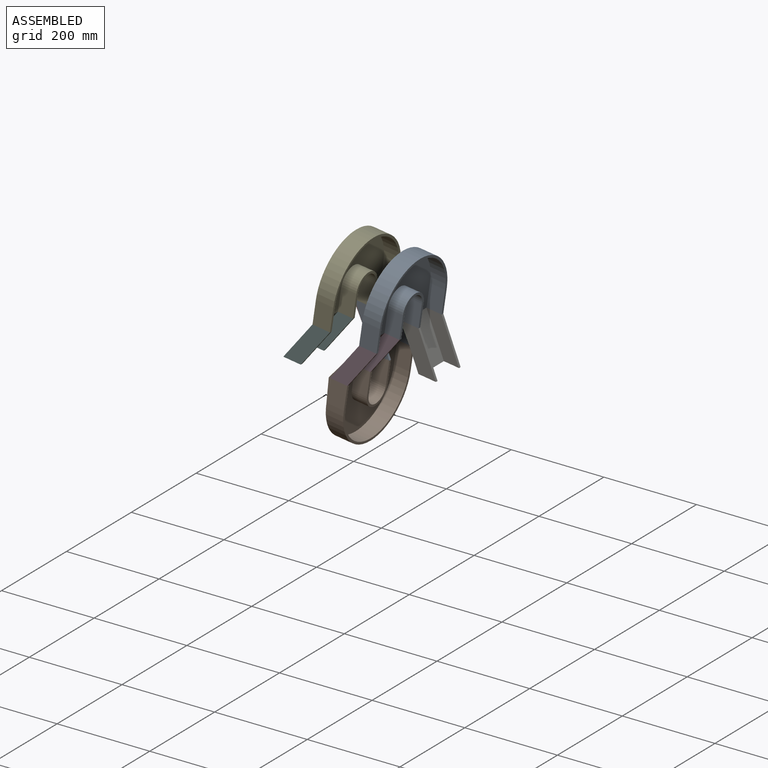
[diagram: assembled view]
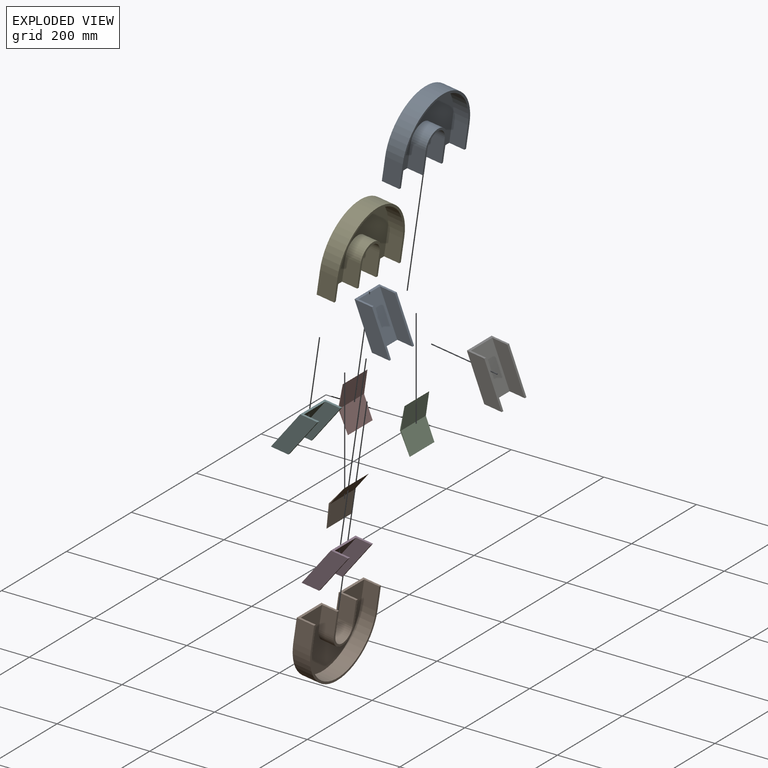
[diagram: exploded view]
GUIDED TOUR — MATED ASSEMBLY (Onshape document 0f732b4c9be885f1928bcccb, AutoMate assembly 0f732b4c9be885f1928bcccb_c0cea8af5c024fc4c8815279_246d32e3d56a053749b8df74_default)

This assembly has 10 components, labeled P0..P9 below (a component is one placed occurrence of a part; the same part can appear more than once), held together by 9 mates. A mate is a constraint between two components; its type names the relative motion it leaves free:
  FASTENED — locks the two components together rigidly (no relative motion).
Axis/direction vectors are unit vectors and 'through' points are millimeter coordinates, both in the assembly's world frame.

MATES
  1. FASTENED "Fastened 6": P4 <-> P8, direction (-0.145, 0.000, -0.989) through (-58.85, -115.97, -117.68) mm
  2. FASTENED "Fastened 2": P0 <-> P2, direction (-0.145, 0.000, -0.989) through (34.10, -154.07, -105.66) mm
  3. FASTENED "Fastened 1": P0 <-> P6, direction (-0.989, 0.000, 0.145) through (49.26, -154.07, -133.56) mm
  4. FASTENED "Fastened 5": P8 <-> P9, direction (-0.145, 0.000, -0.989) through (-21.37, -115.97, -212.12) mm
  5. FASTENED "Fastened 3": P3 <-> P0, direction (0.145, 0.000, 0.989) through (35.43, -245.51, -131.53) mm
  6. FASTENED "Fastened 7": P5 <-> P4, direction (0.145, 0.000, 0.989) through (-58.85, -245.51, -117.68) mm
  7. FASTENED "Fastened 8": P7 <-> P4, direction (-0.145, 0.000, -0.989) through (-66.43, -154.07, -90.90) mm
  8. FASTENED "Fastened 9": P1 <-> P9, direction (0.145, 0.000, 0.989) through (-36.32, -283.61, -235.60) mm
  9. FASTENED "Fastened 4": P9 <-> P3, direction (0.145, 0.000, 0.989) through (-27.61, -245.51, -211.20) mm

ASSEMBLY ORDER
  1. P8 — the base component [order verified]
  2. P7 [order verified]
  3. P5 [order verified]
  4. P4 [order verified]
  5. P1 [order verified]
  6. P3 [order verified]
  7. P2 [order verified]
  8. P6 [order verified]
  9. P0 [order verified]
  10. P9 [order verified]
Order-tag legend:
  [order verified] — this step's position reverses a verified removal order: the component was checked to insert without passing through the ones already placed.

Of the 10 components, 7 carry the full construction recipe — the FeatureScript program that regenerates the part's solid from scratch; the rest are supplied as boundary geometry only.
Each toured component is shown spotlighted twice — in the assembled view, then in the exploded view, where a leader line traces a displaced component back to its assembled socket (saturated green if recipe-attached, orange if geometry-only; every other component desaturated gray) — followed by its recipe or geometry summary and the mates that hold it.
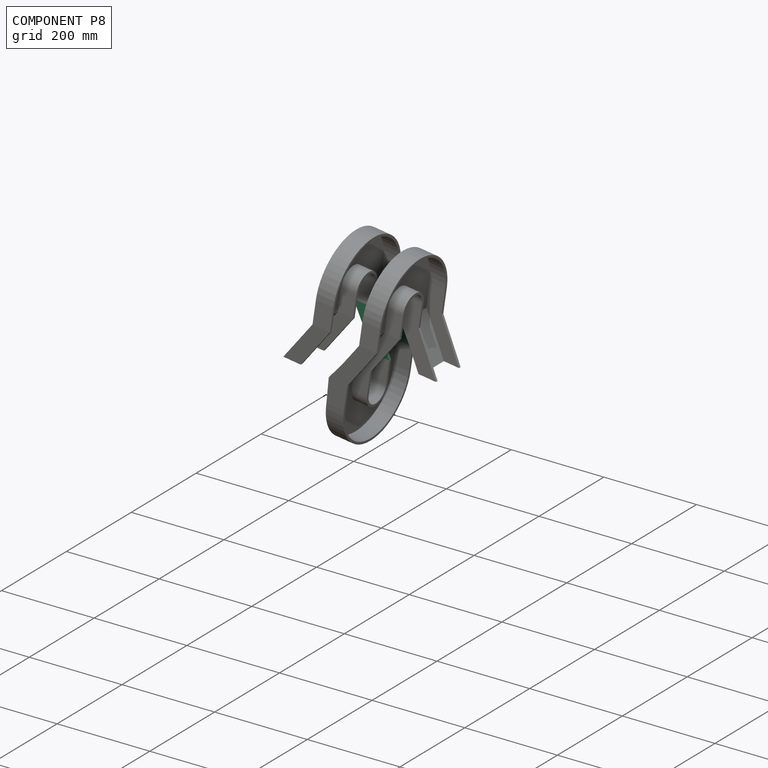
[diagram: component P8 — assembled]
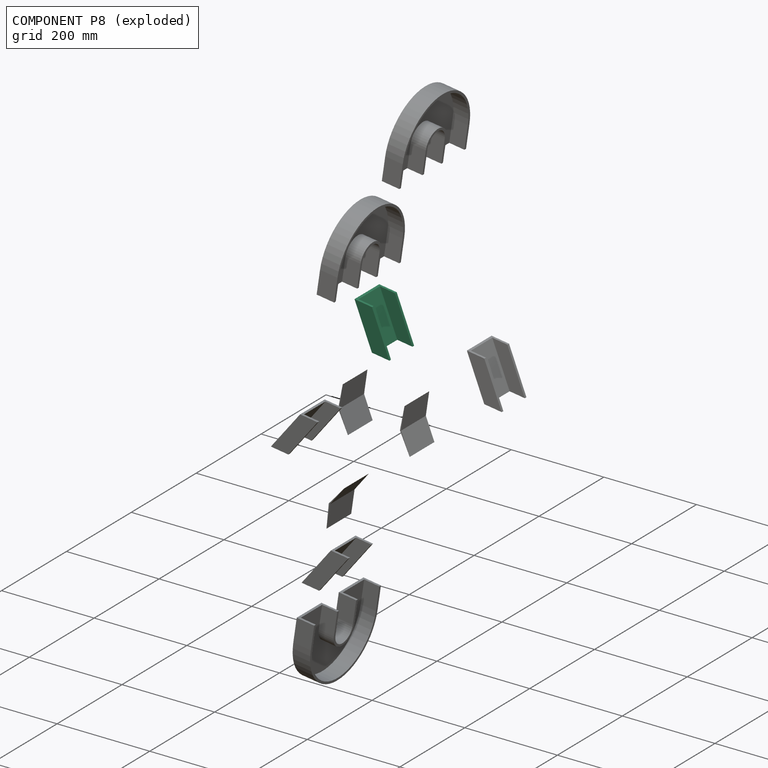
[diagram: component P8 — exploded]
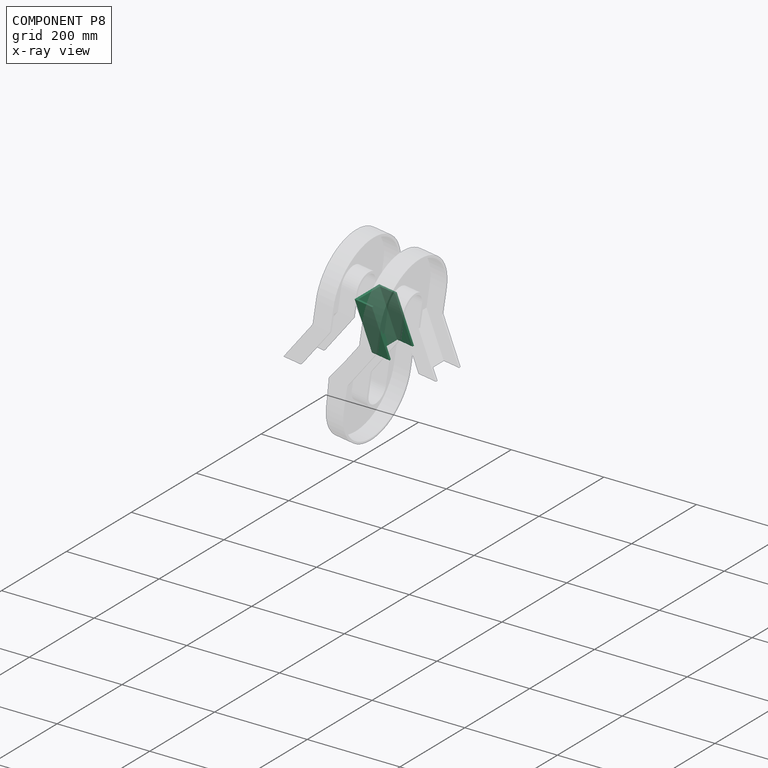
[diagram: component P8 — x-ray view]
COMPONENT P8 — same part as P3 (CADFS 00770395); its construction recipe is shown at P3.
Held by: FASTENED mate "Fastened 6" to P4; FASTENED mate "Fastened 5" to P9.
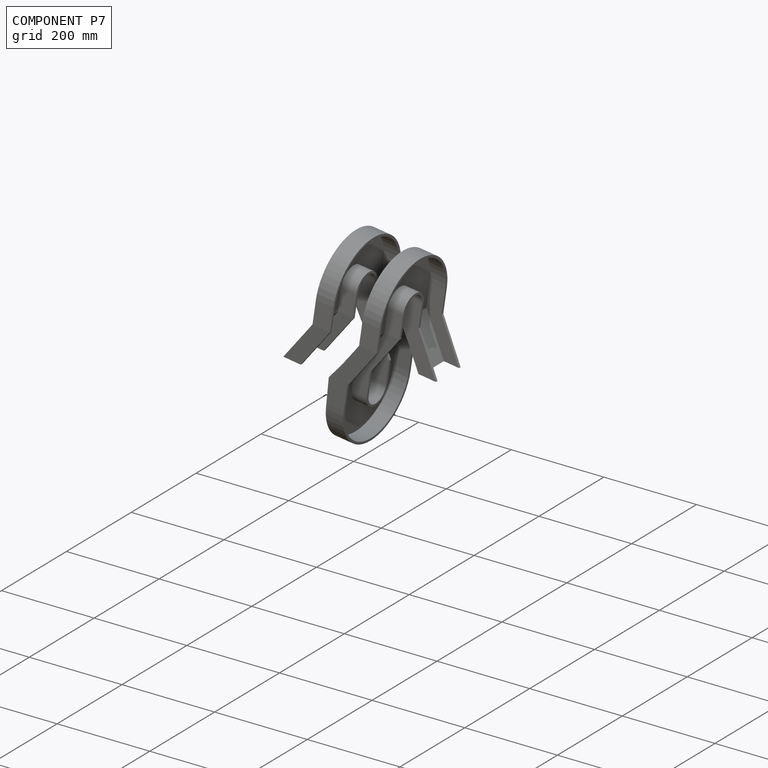
[diagram: component P7 — assembled]
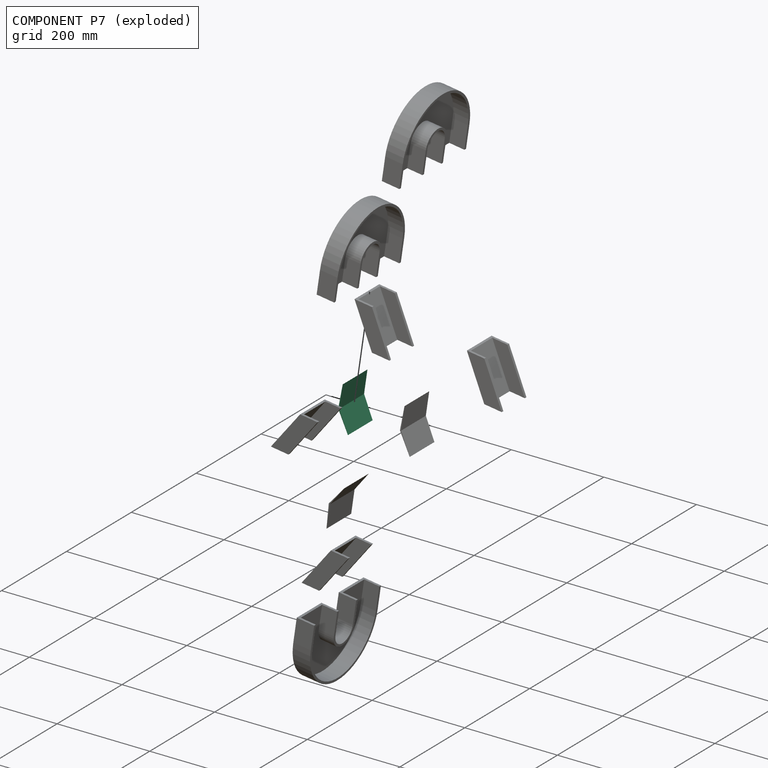
[diagram: component P7 — exploded]
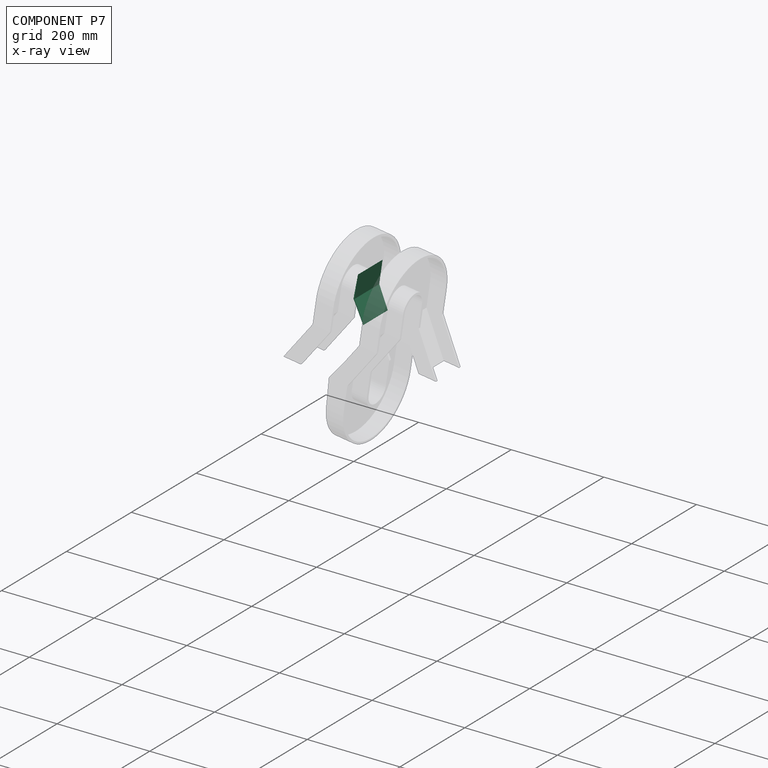
[diagram: component P7 — x-ray view]
COMPONENT P7 — same part as P1 (CADFS 00770396); its construction recipe is shown at P1.
Held by: FASTENED mate "Fastened 8" to P4.
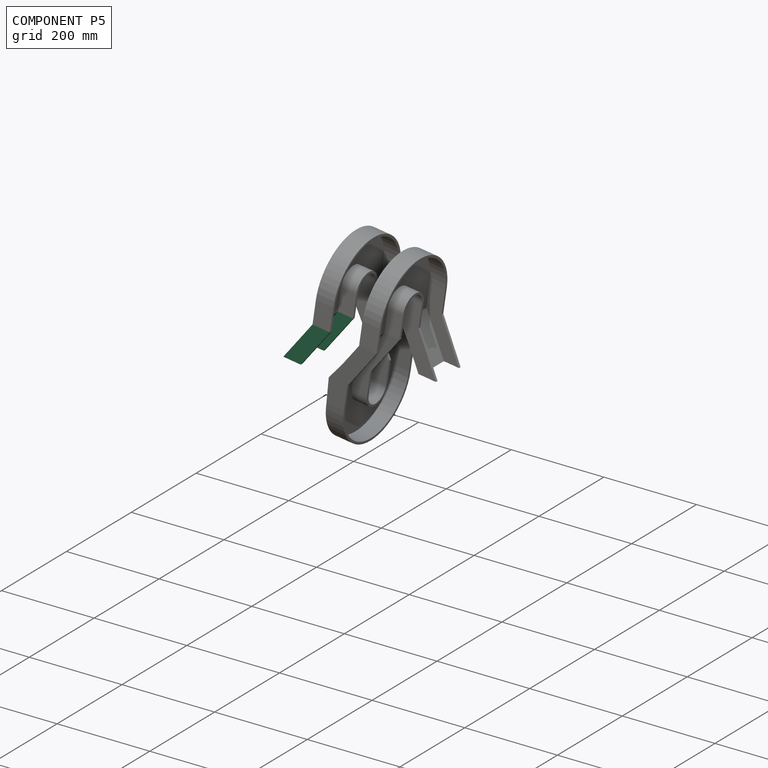
[diagram: component P5 — assembled]
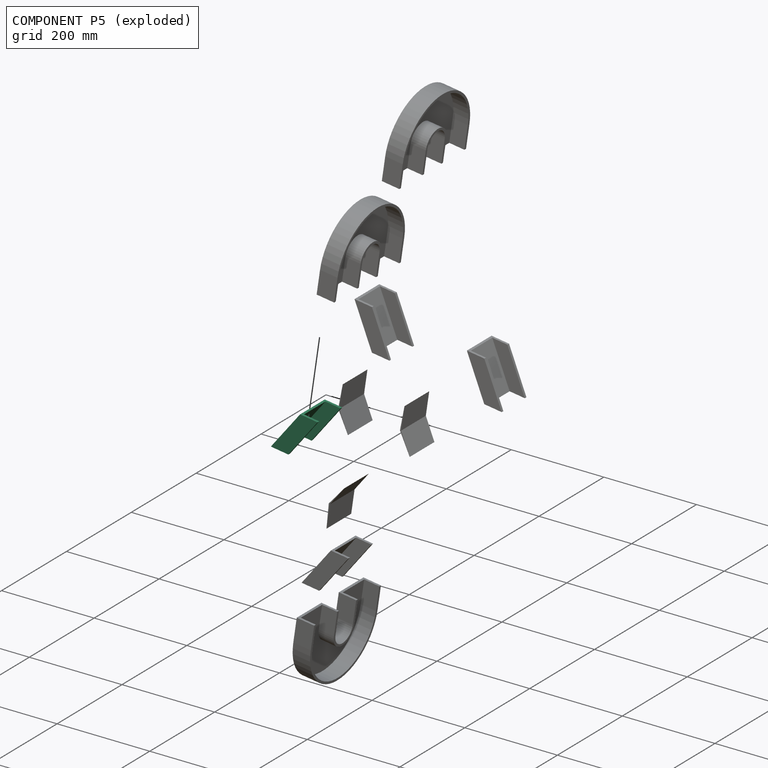
[diagram: component P5 — exploded]
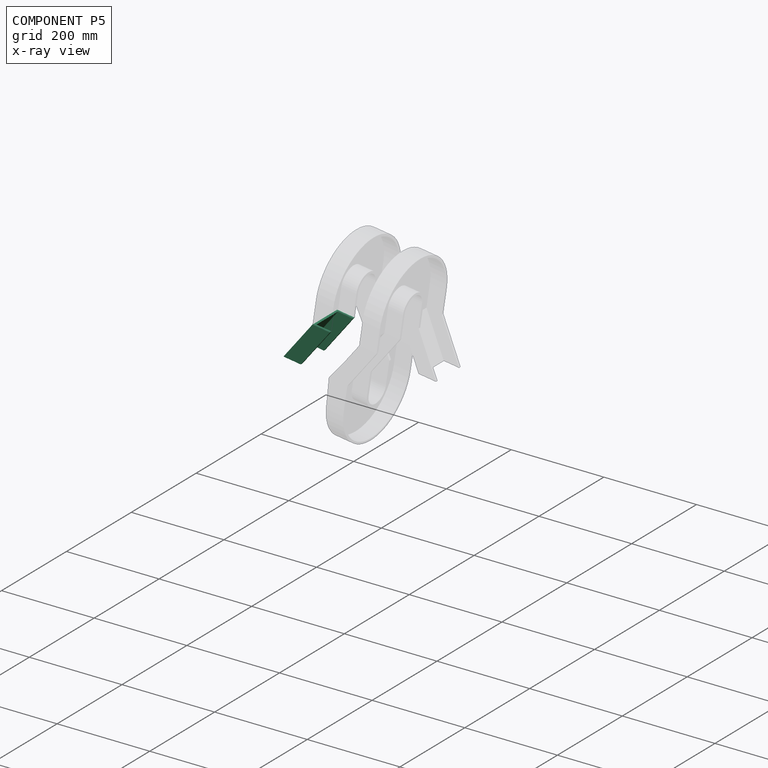
[diagram: component P5 — x-ray view]
COMPONENT P5 — same part as P3 (CADFS 00770395); its construction recipe is shown at P3.
Held by: FASTENED mate "Fastened 7" to P4.
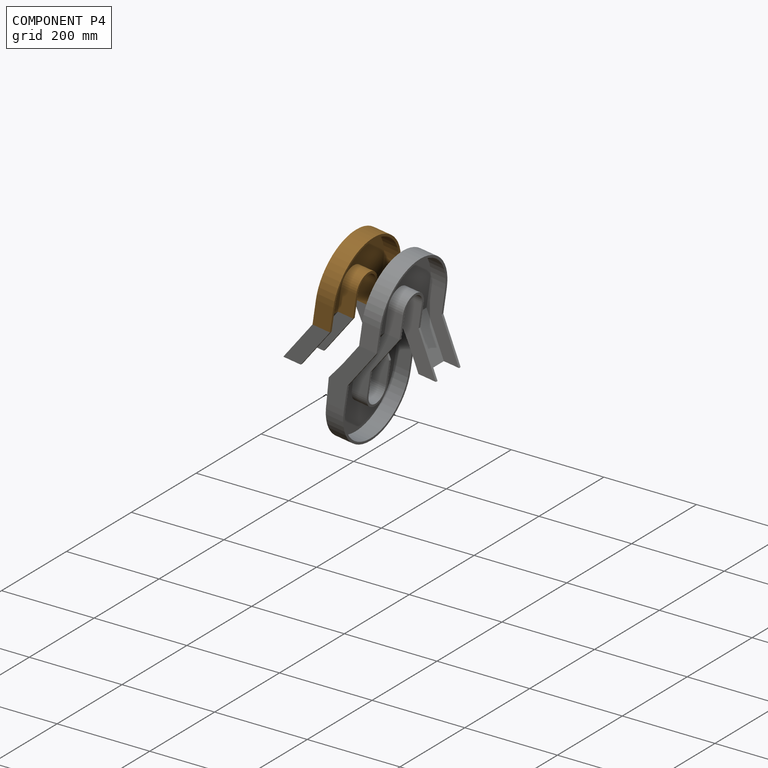
[diagram: component P4 — assembled]
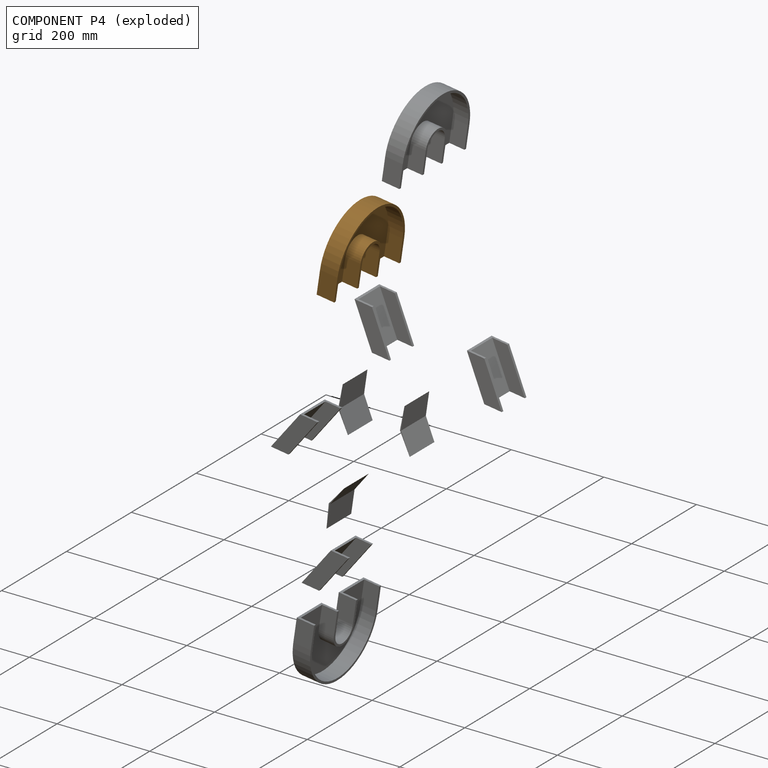
[diagram: component P4 — exploded]
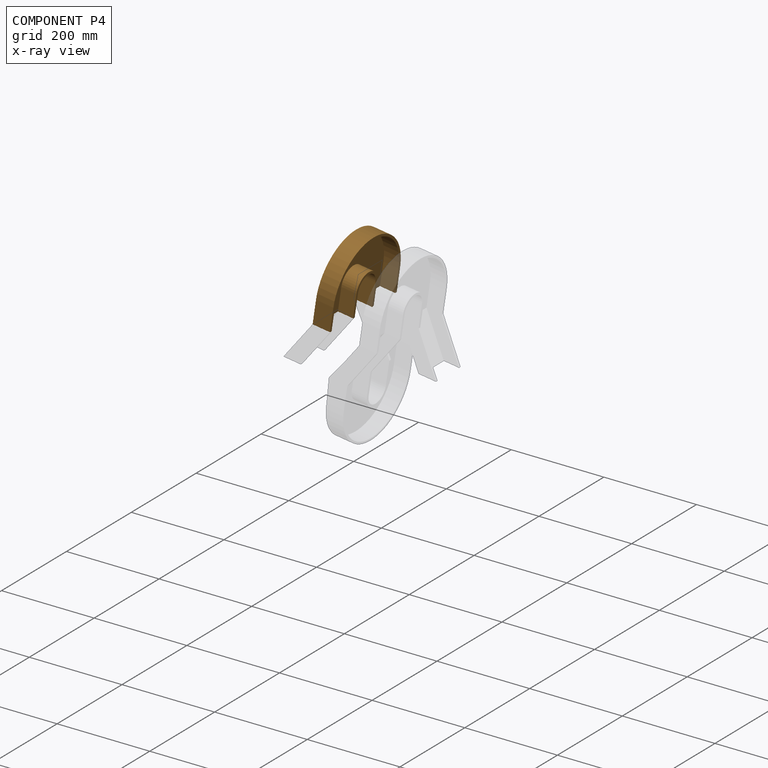
[diagram: component P4 — x-ray view]
COMPONENT P4 — geometry summary (no construction recipe available for this part):
  bounding box: 205.7 x 153.7 x 38.1 mm
  B-rep topology: 1 solid, 18 faces, 96 edges
  volume: 220445 mm^3 (18% of its bounding box)
  symmetry: mirror-symmetric across its y mid-plane
Held by: FASTENED mate "Fastened 6" to P8; FASTENED mate "Fastened 7" to P5; FASTENED mate "Fastened 8" to P7.
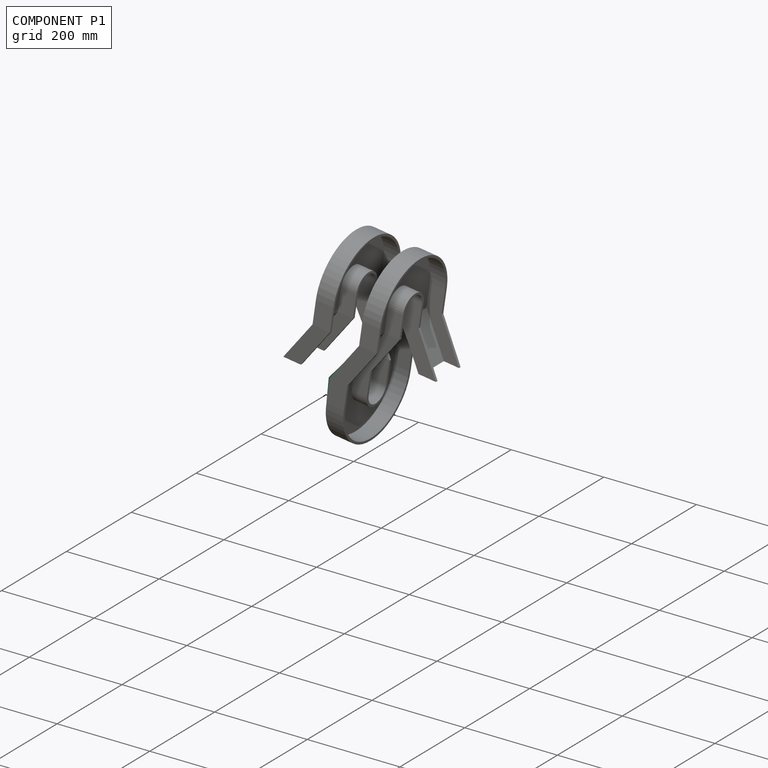
[diagram: component P1 — assembled]
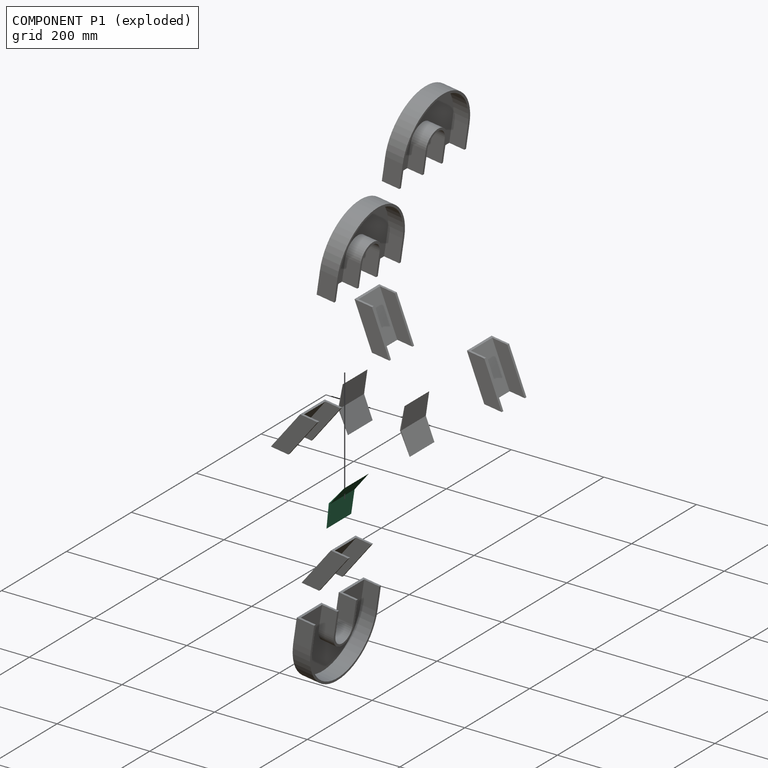
[diagram: component P1 — exploded]
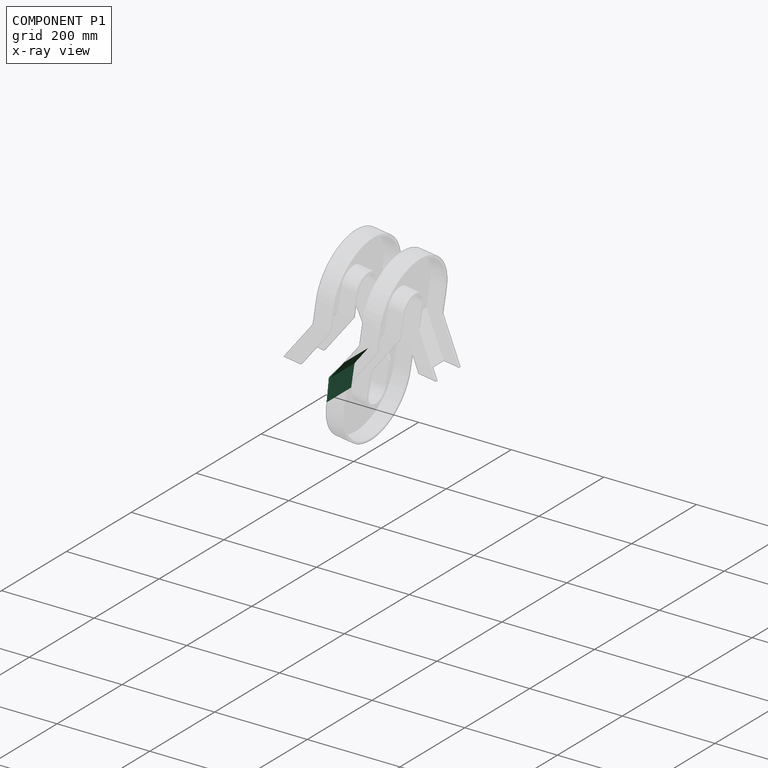
[diagram: component P1 — x-ray view]
COMPONENT P1 — recipe-attached (CADFS 00770396, mesh-verified: the recipe's output STEP matches this component's geometry to below the mesh-comparison resolution (tessellation chordal tolerance ~0.185 mm)).
Held by: FASTENED mate "Fastened 9" to P9.
Construction recipe (FeatureScript — the CAD program that rebuilds this solid; sketch coordinates are in the units given by the * unit suffixes, e.g. mm):

FeatureScript 1511;
import(path : "onshape/std/geometry.fs", version : "1511.0");
import(path : "onshape/std/common.fs", version : "1511.0");
const mm = millimeter;
const VERTEX = EntityType.VERTEX;
const EDGE = EntityType.EDGE;
const FACE = EntityType.FACE;
const BODY = EntityType.BODY;
function v(x, y){return vector(x, y);}
function OD(order){return orderDisambiguation(order);}
function OSD(set){return originalSetDisambiguation(set);}
function TD(topology){return topologyDisambiguation(topology);}
function TDD(query){return trueDependencyDisambiguation(query);}
function sQuery(a, b, c) {return sketchEntityQuery(a, b, c);}

annotation { "Feature Type Name" : "Feature", "Feature Type Description" : "" }
export const myFeature = defineFeature(function(context is Context, id is Id, definition is map)
    precondition{}
    {
        {
            var Q0;
            Q0=qCreatedBy(makeId("Top.planeOp"),FACE);
            var sketch = newSketch(context, id + "F0", { "sketchPlane" : qUnion([Q0])});
            skLineSegment(sketch, "E0", {"start": v(-29.55, -15.76) * mm, "end": v(1.55, 23.54) * mm});
            skLineSegment(sketch, "E1", {"start": v(1.55, 23.54) * mm, "end": v(48.06, 42) * mm});
            skLineSegment(sketch, "E2", {"start": v(-29.55, -15.76) * mm, "end": v(0, 25.56) * mm});
            skLineSegment(sketch, "E3", {"start": v(0, 25.56) * mm, "end": v(48.06, 42) * mm});
            skSolve(sketch);
        }
        {
            var Q0;
            Q0 = qSketchRegion(id + "F0", true);
            extrude(context, id + "F1", {"entities" : qUnion([Q0]), "depth" : 76.2 * mm, "offsetDistance" : 25.4 * mm});
        }
    });
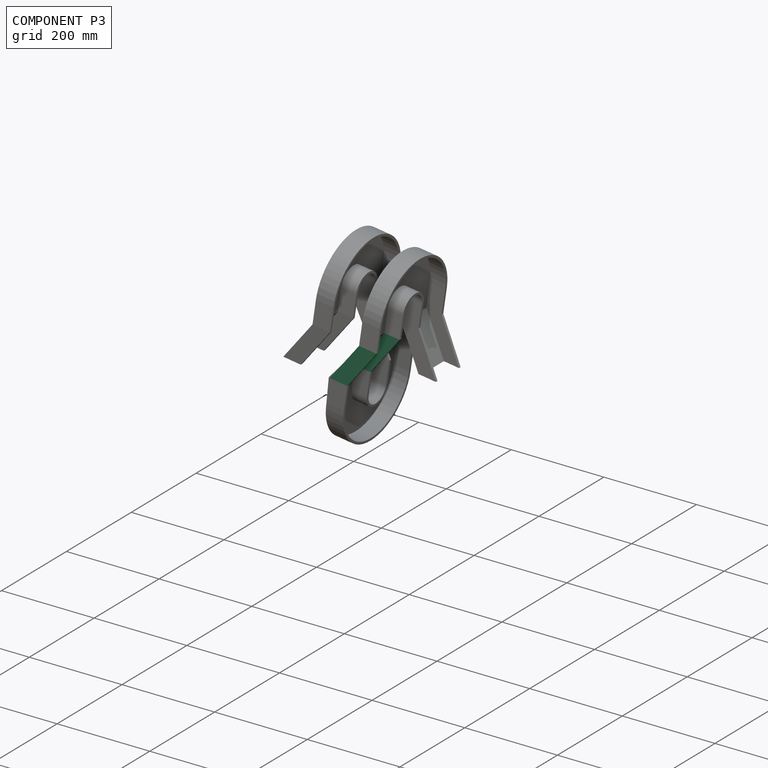
[diagram: component P3 — assembled]
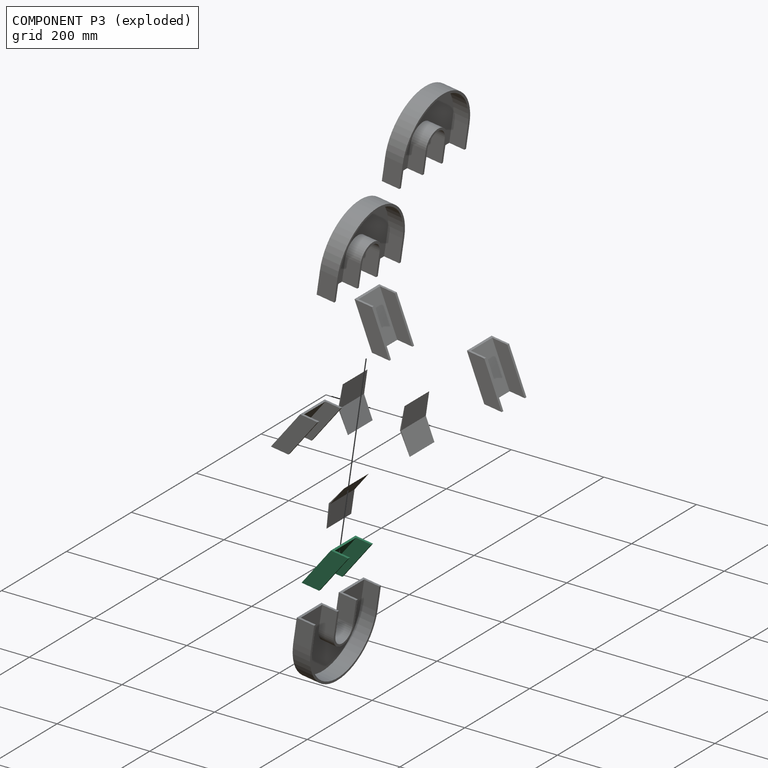
[diagram: component P3 — exploded]
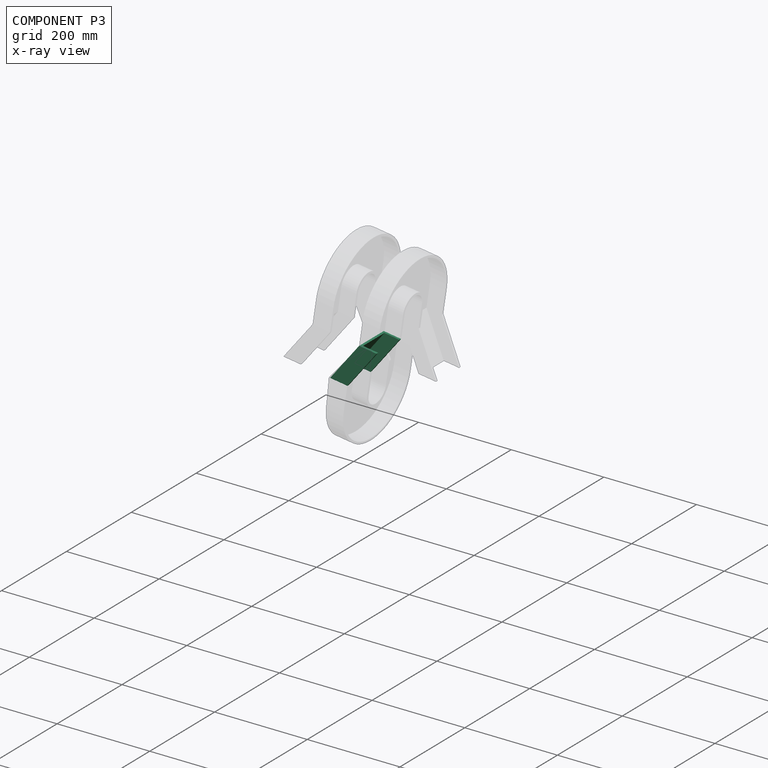
[diagram: component P3 — x-ray view]
COMPONENT P3 — recipe-attached (CADFS 00770395, mesh-verified: the recipe's output STEP matches this component's geometry to below the mesh-comparison resolution (tessellation chordal tolerance ~0.22 mm)).
Held by: FASTENED mate "Fastened 3" to P0; FASTENED mate "Fastened 4" to P9.
Construction recipe (FeatureScript — the CAD program that rebuilds this solid; sketch coordinates are in the units given by the * unit suffixes, e.g. mm):

FeatureScript 1511;
import(path : "onshape/std/geometry.fs", version : "1511.0");
import(path : "onshape/std/common.fs", version : "1511.0");
const mm = millimeter;
const VERTEX = EntityType.VERTEX;
const EDGE = EntityType.EDGE;
const FACE = EntityType.FACE;
const BODY = EntityType.BODY;
function v(x, y){return vector(x, y);}
function OD(order){return orderDisambiguation(order);}
function OSD(set){return originalSetDisambiguation(set);}
function TD(topology){return topologyDisambiguation(topology);}
function TDD(query){return trueDependencyDisambiguation(query);}
function sQuery(a, b, c) {return sketchEntityQuery(a, b, c);}

annotation { "Feature Type Name" : "Feature", "Feature Type Description" : "" }
export const myFeature = defineFeature(function(context is Context, id is Id, definition is map)
    precondition{}
    {
        {
            var Q0;
            Q0=qCreatedBy(makeId("Top.planeOp"),FACE);
            var sketch = newSketch(context, id + "F0", { "sketchPlane" : qUnion([Q0])});
            skLineSegment(sketch, "E0", {"start": v(-55.08, -0.83) * mm, "end": v(46.52, -0.83) * mm});
            skLineSegment(sketch, "E1", {"start": v(46.52, -0.83) * mm, "end": v(27.46, -33.85) * mm});
            skLineSegment(sketch, "E2", {"start": v(27.46, -33.85) * mm, "end": v(-74.14, -33.85) * mm});
            skLineSegment(sketch, "E3", {"start": v(-74.14, -33.85) * mm, "end": v(-55.08, -0.83) * mm});
            skSolve(sketch);
        }
        {
            var Q0;
            Q0=makeQuery(id+"F0.imprint","IMPRINT",FACE,{"disambiguationData":[TD([[makeQuery(id+"F0.imprint","IMPRINT",EDGE,{"derivedFrom":sQuery(id+"F0.wireOp",EDGE,"E0")}),-1.0]])]});
            extrude(context, id + "F1", {"entities" : qUnion([Q0]), "depth" : 76.2 * mm, "offsetDistance" : 25.4 * mm});
        }
        {
            var Q0;
            Q0=makeQuery(id+"F1.opExtrude","SWEPT_FACE",FACE,{"disambiguationData":[OSD([sQuery(id+"F0.wireOp",EDGE,"E1")])]});
            var sketch = newSketch(context, id + "F2", { "sketchPlane" : qUnion([Q0])});
            skLineSegment(sketch, "E4", {"start": v(22.54, 71.12) * mm, "end": v(-10.51, 71.12) * mm});
            skLineSegment(sketch, "E5", {"start": v(-10.51, 71.12) * mm, "end": v(-10.51, 5.08) * mm});
            skLineSegment(sketch, "E6", {"start": v(-10.51, 5.08) * mm, "end": v(22.54, 5.08) * mm});
            skSolve(sketch);
        }
        {
            var Q0;
            Q0=makeQuery(id+"F1.opExtrude","SWEPT_FACE",FACE,{"disambiguationData":[OSD([sQuery(id+"F0.wireOp",EDGE,"E0")])]});
            var sketch = newSketch(context, id + "F3", { "sketchPlane" : qUnion([Q0])});
            skLineSegment(sketch, "E7", {"start": v(-46.52, 38.1) * mm, "end": v(55.08, 38.1) * mm});
            skSolve(sketch);
        }
        {
            var Q0;
            {var subQ0=sQuery(id+"F2.wireOp",EDGE,"E4");Q0=makeQuery(id+"F2.imprint","IMPRINT",FACE,{"disambiguationData":[TD([[makeQuery(id+"F2.imprint","IMPRINT",EDGE,{"derivedFrom":subQ0}),1.0]])]});}
            var Q1;
            Q1=sQuery(id+"F3.wireOp",EDGE,"E7");
            sweep(context, id + "F4", {"operationType" : NewBodyOperationType.REMOVE, "profiles" : qUnion([Q0]), "path" : qUnion([Q1])});
        }
    });
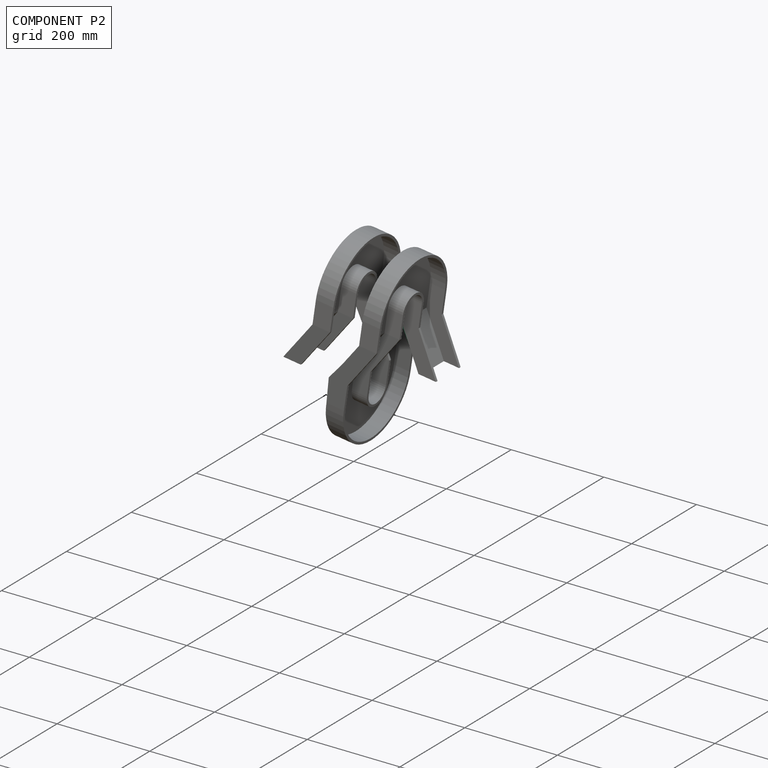
[diagram: component P2 — assembled]
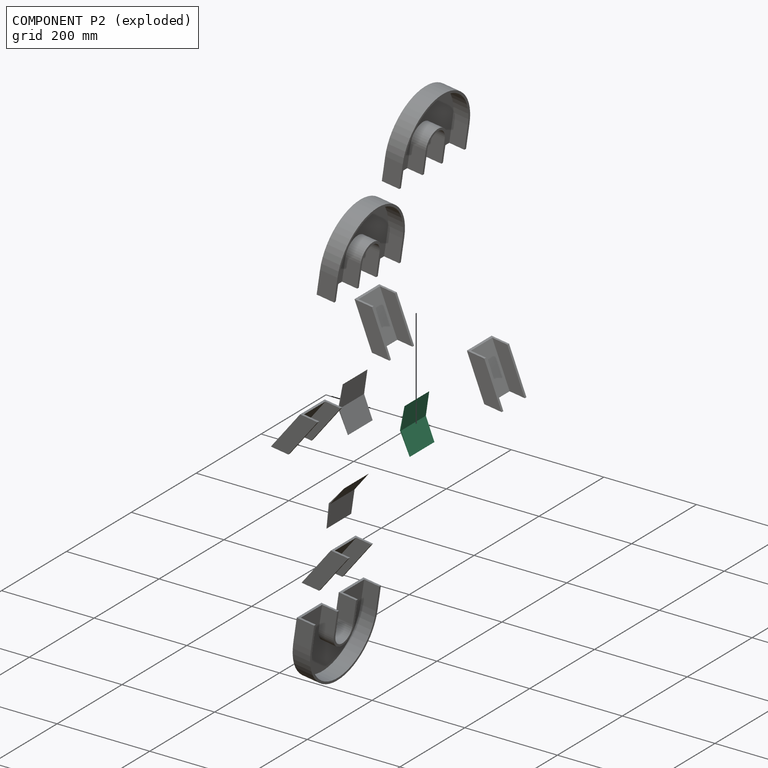
[diagram: component P2 — exploded]
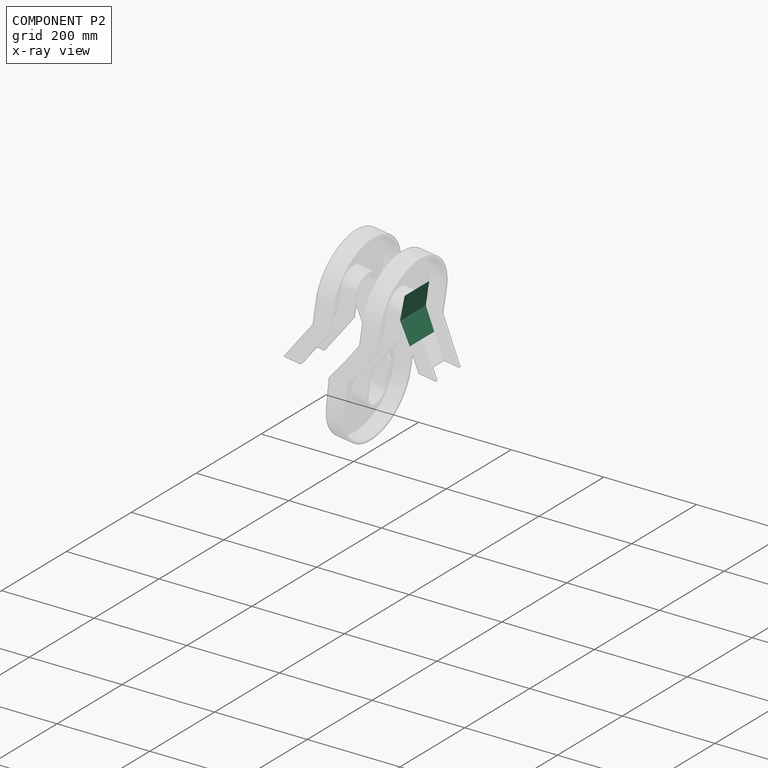
[diagram: component P2 — x-ray view]
COMPONENT P2 — same part as P1 (CADFS 00770396); its construction recipe is shown at P1.
Held by: FASTENED mate "Fastened 2" to P0.
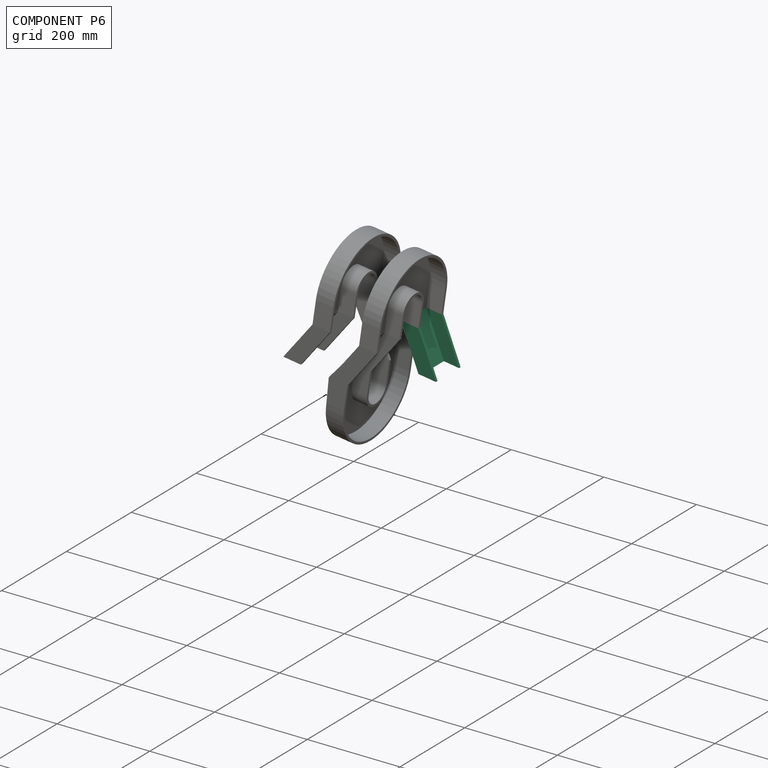
[diagram: component P6 — assembled]
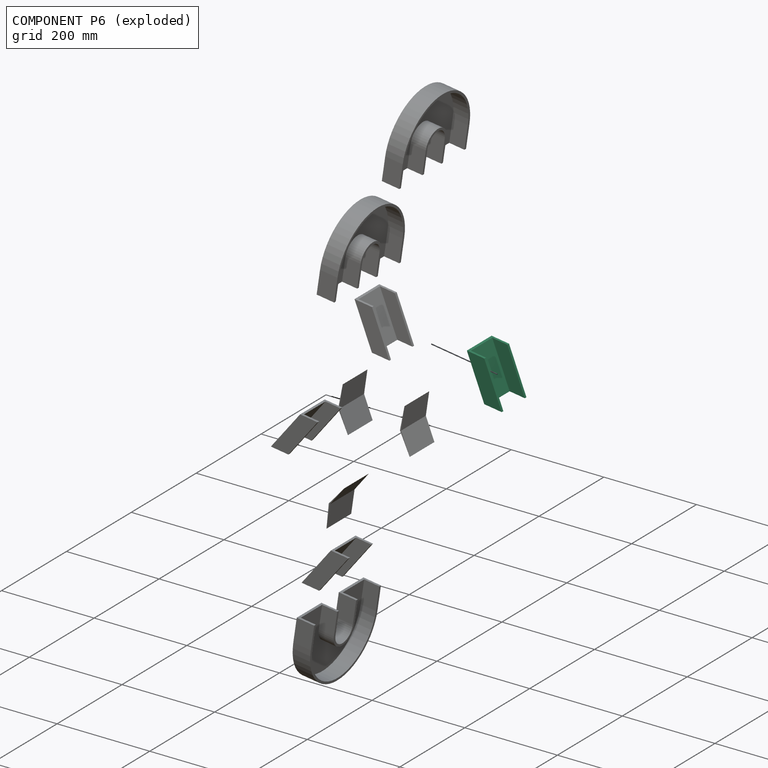
[diagram: component P6 — exploded]
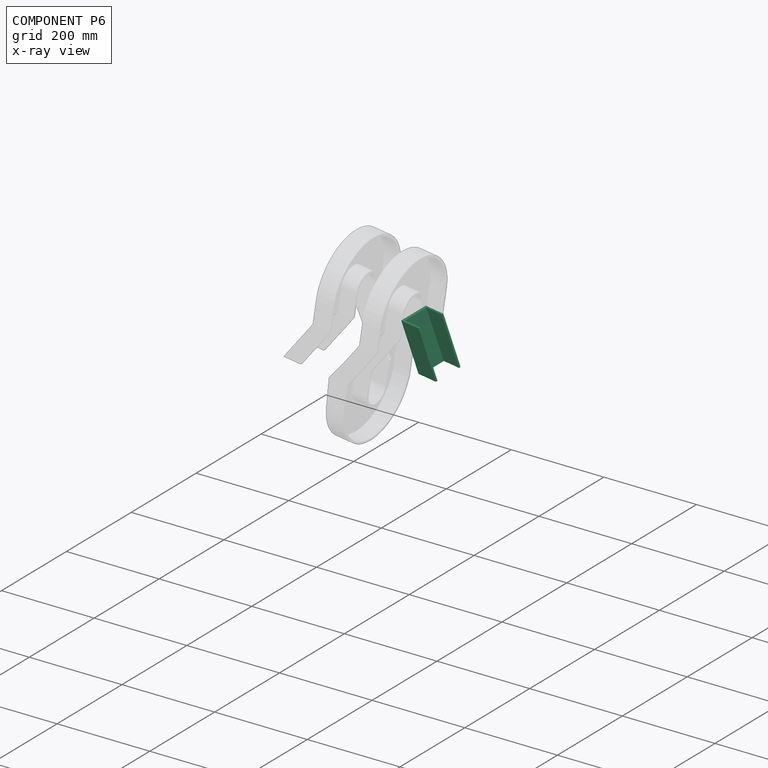
[diagram: component P6 — x-ray view]
COMPONENT P6 — same part as P3 (CADFS 00770395); its construction recipe is shown at P3.
Held by: FASTENED mate "Fastened 1" to P0.
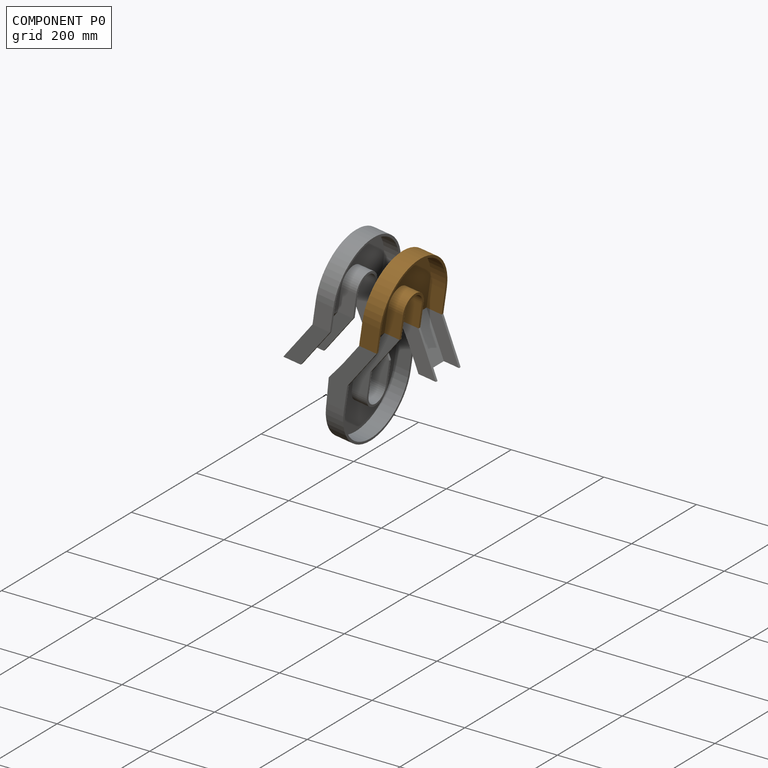
[diagram: component P0 — assembled]
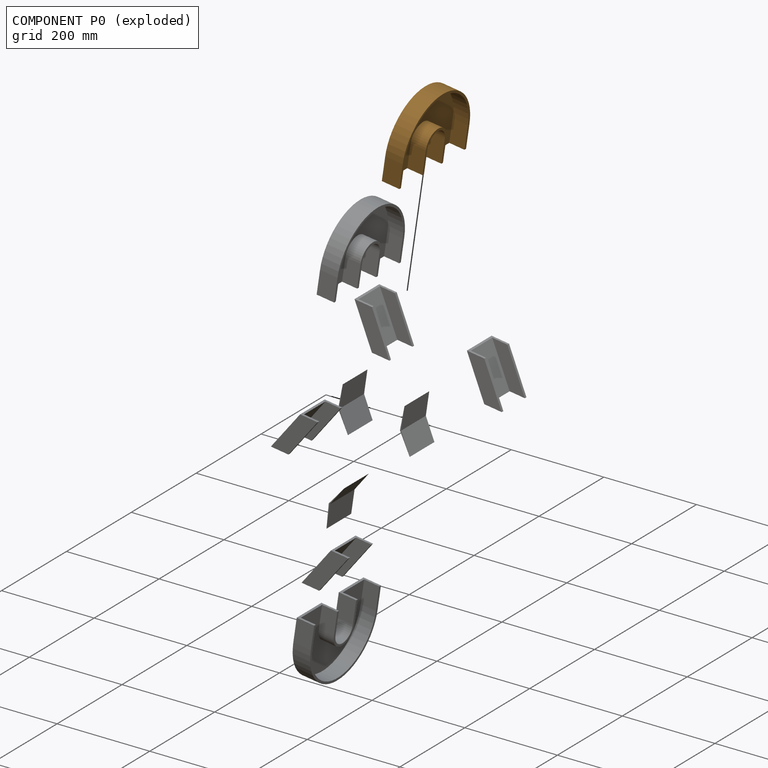
[diagram: component P0 — exploded]
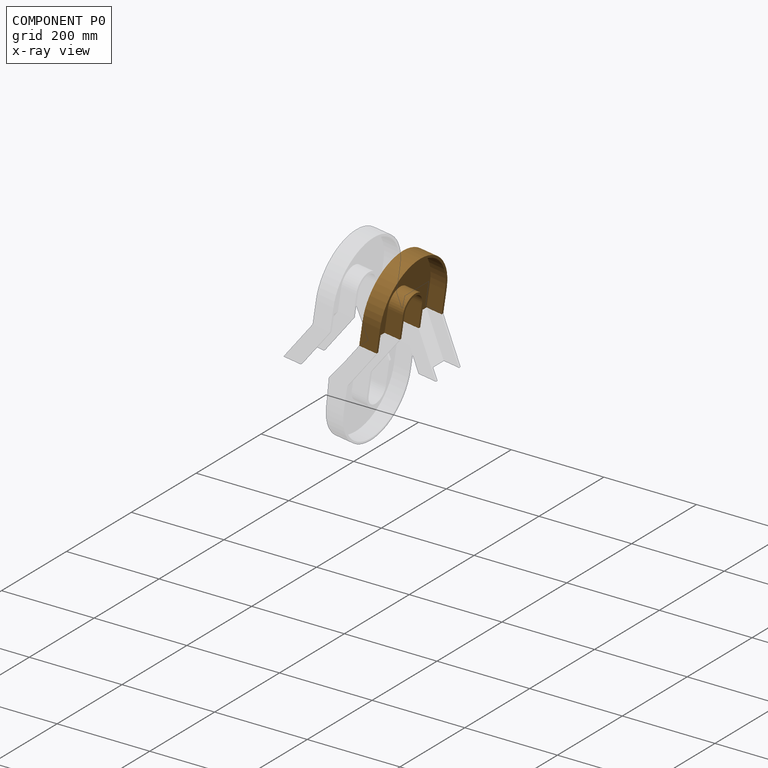
[diagram: component P0 — x-ray view]
COMPONENT P0 — geometry summary (no construction recipe available for this part):
  bounding box: 205.7 x 153.7 x 38.1 mm
  B-rep topology: 1 solid, 18 faces, 96 edges
  volume: 220445 mm^3 (18% of its bounding box)
  symmetry: mirror-symmetric across its y mid-plane
Held by: FASTENED mate "Fastened 2" to P2; FASTENED mate "Fastened 1" to P6; FASTENED mate "Fastened 3" to P3.
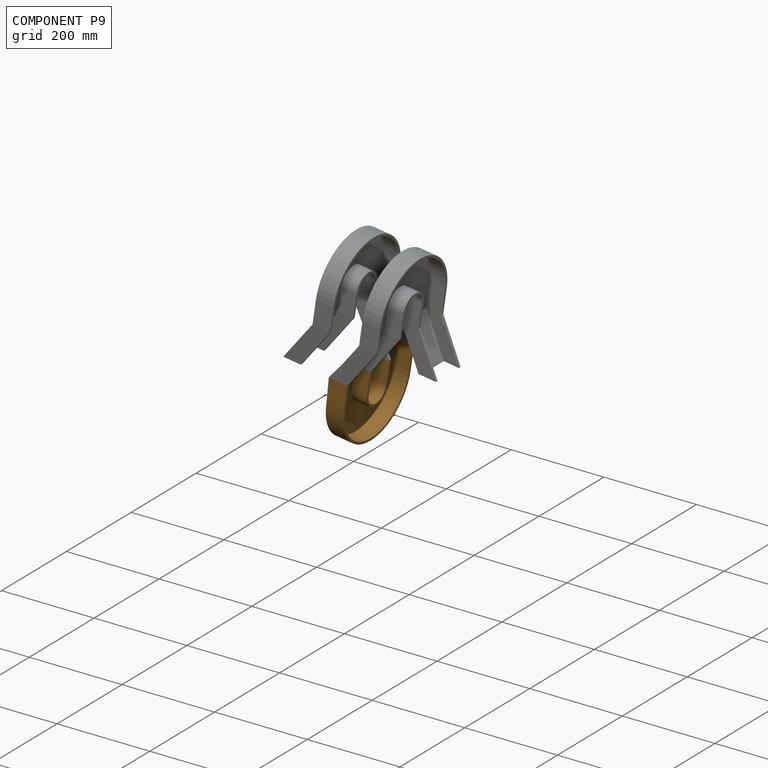
[diagram: component P9 — assembled]
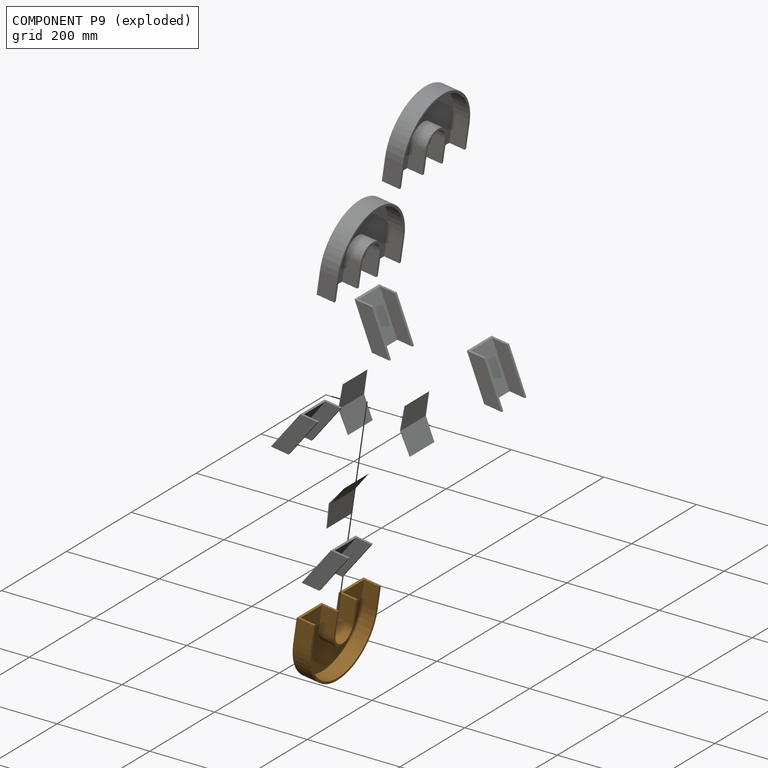
[diagram: component P9 — exploded]
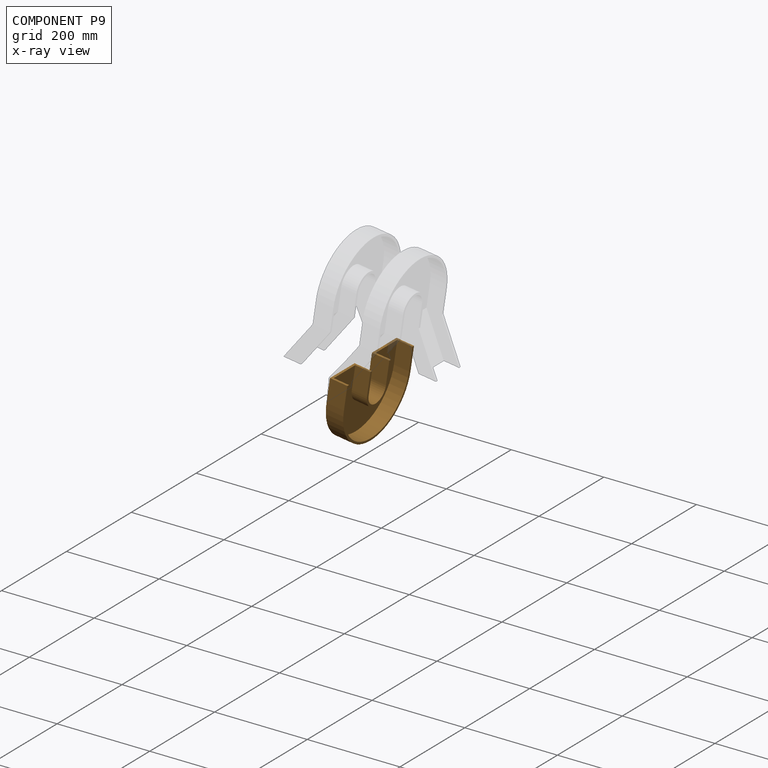
[diagram: component P9 — x-ray view]
COMPONENT P9 — geometry summary (no construction recipe available for this part):
  bounding box: 205.7 x 153.7 x 38.1 mm
  B-rep topology: 1 solid, 18 faces, 96 edges
  volume: 220445 mm^3 (18% of its bounding box)
  symmetry: mirror-symmetric across its y mid-plane
Held by: FASTENED mate "Fastened 5" to P8; FASTENED mate "Fastened 9" to P1; FASTENED mate "Fastened 4" to P3.
PROVENANCE & LICENSES
Assembly (occurrences, transforms, mates, per-part STEP geometry): AutoMate dataset, Zenodo record 7776208, CC0.
Construction recipes: CADFS (HuggingFace VladPyatov/CADFS, CC-BY-4.0, layered over the ABC dataset), FeatureScript reconstruction programs keyed by ABC model id.
Join: ABC meta listings map ABC model id -> Onshape documentId; within a shared document, parts are matched by geometric signature (bounding-box dims + volume at 0.1% relative tolerance, exact B-rep face/solid counts).
Verification: 7 of this assembly's 10 components carry a recipe attachment, and every attachment is mesh-verified: the CADFS STEP and the AutoMate member STEP were compared as meshes in their shared local frame (symmetric sampled-point-to-mesh distance); worst across the 7 attachments: below the mesh-comparison resolution (tessellation chordal tolerance ~0.22 mm) on a 146 mm part.
Renders: orthographic iso camera (az 35 / el 25); the floor grid conveys scale (grid pitch printed in each image; no ruler). In the exploded view each component is displaced by its stored offset vector: the offsets alone carry the explosion direction (mate normal/axis signs are not orientation cues and do not encode it), and separation distances are assigned per mate-chain, not proportionally to assembly-order depth.
